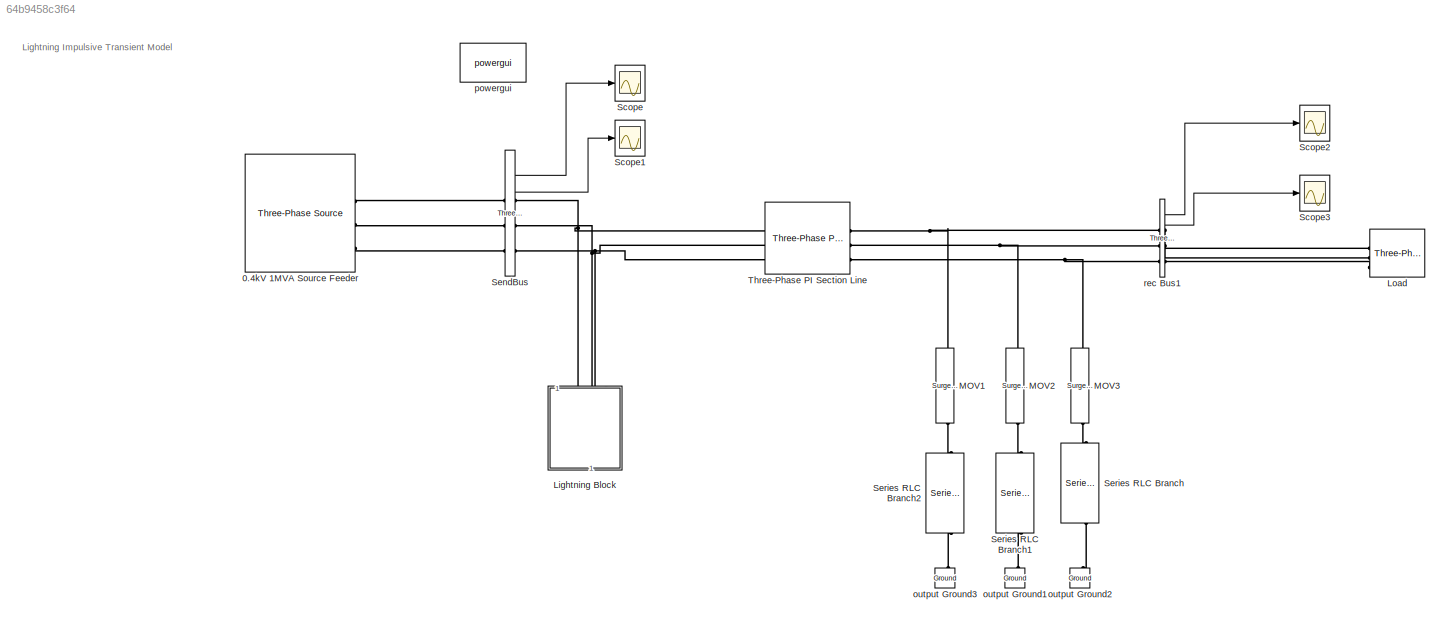
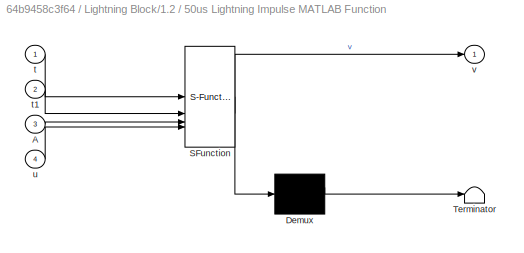
MODEL slx_64b9458c3f64
KIND model
CONFIG AbsTol = auto
CONFIG EnableMultiTasking = on
CONFIG FixedStep = auto
CONFIG MaxStep = auto
CONFIG MinStep = auto
CONFIG RelTol = 1e-3
CONFIG SampleTimeConstraint = Unconstrained
CONFIG SolverName = ode23tb
CONFIG StartTime = 0.0
CONFIG StopTime = .1
BLOCK [Reference] 0.4kV 1MVA Source Feeder  REF=spsThreePhaseSourceLib/Three-Phase Source
  LibrarySourceBlock = sps_lib/Sources/Three-Phase Source
  SourceBlock = spsThreePhaseSourceLib/Three-Phase Source
  SourceType = Three-Phase Source
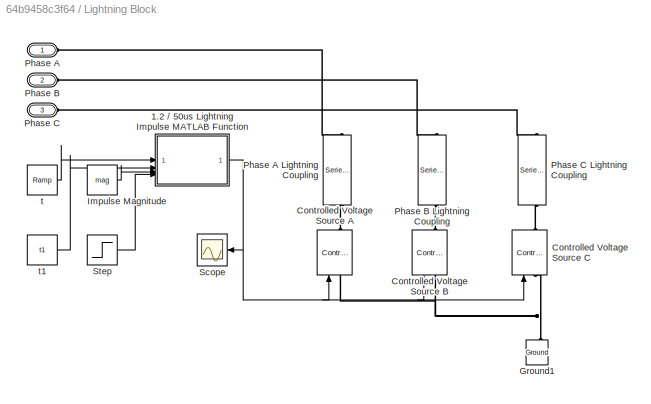
BLOCK [SubSystem] Lightning Block
  NameLocation = left
BLOCK [SubSystem] Lightning Block/1.2 // 50us Lightning Impulse MATLAB Function
  ErrorFcn = Stateflow.Translate.translate
  PermitHierarchicalResolution = ExplicitOnly
  SFBlockType = MATLAB Function
  TreatAsAtomicUnit = on
BLOCK [Demux] Lightning Block/1.2 // 50us Lightning Impulse MATLAB Function/ Demux 
  Outputs = 1
BLOCK [S-Function] Lightning Block/1.2 // 50us Lightning Impulse MATLAB Function/ SFunction 
  EnableBusSupport = off
  FunctionName = sf_sfun
  PortCounts = [4 2]
  SFcnIsStateOwnerBlock = off
  SFunctionDeploymentMode = off
  Tag = Stateflow S-Function 2
BLOCK [Terminator] Lightning Block/1.2 // 50us Lightning Impulse MATLAB Function/ Terminator 
BLOCK [Inport] Lightning Block/1.2 // 50us Lightning Impulse MATLAB Function/A
  Port = 3
BLOCK [Inport] Lightning Block/1.2 // 50us Lightning Impulse MATLAB Function/t
BLOCK [Inport] Lightning Block/1.2 // 50us Lightning Impulse MATLAB Function/t1
  Port = 2
BLOCK [Inport] Lightning Block/1.2 // 50us Lightning Impulse MATLAB Function/u
  Port = 4
BLOCK [Outport] Lightning Block/1.2 // 50us Lightning Impulse MATLAB Function/v
  VectorParamsAs1DForOutWhenUnconnected = off
BLOCK [Reference] Lightning Block/Controlled Voltage Source A  REF=spsControlledVoltageSourceLib/Controlled Voltage Source
  LibrarySourceBlock = sps_lib/Sources/Controlled Voltage Source
  NameLocation = left
  SourceBlock = spsControlledVoltageSourceLib/Controlled Voltage Source
  SourceType = Controlled Voltage Source
BLOCK [Reference] Lightning Block/Controlled Voltage Source B  REF=spsControlledVoltageSourceLib/Controlled Voltage Source
  LibrarySourceBlock = sps_lib/Sources/Controlled Voltage Source
  NameLocation = left
  SourceBlock = spsControlledVoltageSourceLib/Controlled Voltage Source
  SourceType = Controlled Voltage Source
BLOCK [Reference] Lightning Block/Controlled Voltage Source C  REF=spsControlledVoltageSourceLib/Controlled Voltage Source
  LibrarySourceBlock = sps_lib/Sources/Controlled Voltage Source
  NameLocation = left
  SourceBlock = spsControlledVoltageSourceLib/Controlled Voltage Source
  SourceType = Controlled Voltage Source
BLOCK [Reference] Lightning Block/Ground1  REF=spsGroundLib/Ground
  LibrarySourceBlock = sps_lib/Utilities/Ground
  NameLocation = right
  SourceBlock = spsGroundLib/Ground
  SourceType = Ground
BLOCK [Constant] Lightning Block/Impulse Magnitude
  Value = mag
BLOCK [PMIOPort] Lightning Block/Phase A
  Side = Left
BLOCK [Reference] Lightning Block/Phase A Lightning Coupling  REF=spsSeriesRLCBranchLib/Series RLC Branch
  LibrarySourceBlock = sps_lib/Passives/Series RLC Branch
  NameLocation = left
  SourceBlock = spsSeriesRLCBranchLib/Series RLC Branch
  SourceType = Series RLC Branch
BLOCK [PMIOPort] Lightning Block/Phase B
  Port = 2
  Side = Left
BLOCK [Reference] Lightning Block/Phase B Lightning Coupling  REF=spsSeriesRLCBranchLib/Series RLC Branch
  LibrarySourceBlock = sps_lib/Passives/Series RLC Branch
  NameLocation = left
  SourceBlock = spsSeriesRLCBranchLib/Series RLC Branch
  SourceType = Series RLC Branch
BLOCK [PMIOPort] Lightning Block/Phase C
  Port = 3
  Side = Left
BLOCK [Reference] Lightning Block/Phase C Lightning Coupling  REF=spsSeriesRLCBranchLib/Series RLC Branch
  LibrarySourceBlock = sps_lib/Passives/Series RLC Branch
  NameLocation = left
  SourceBlock = spsSeriesRLCBranchLib/Series RLC Branch
  SourceType = Series RLC Branch
BLOCK [Scope] Lightning Block/Scope
  DataLogging = on
  DataLoggingDecimateData = on
  DataLoggingDecimation = 1
  DataLoggingSaveFormat = Array
  DataLoggingVariableName = ScopeData1
  Floating = off
  GraphicalSettings = {"GraphicalSettings":{"LegacySettings":true,"Style":{"Style":{"MinimizeControls":"false","PlotType":"Auto"}}}}
  LayoutDimensionsString = [1 1]
  NumInputPorts = 1
  SampleTime = 1/1e6
  WasSavedAsWebScope = on
  WindowPosition = [724 354 324 239]
BLOCK [Step] Lightning Block/Step
  SampleTime = 0
  Time = t1
BLOCK [Reference] Lightning Block/t  REF=simulink/Sources/Ramp
  SourceBlock = simulink/Sources/Ramp
  SourceType = Ramp
BLOCK [Constant] Lightning Block/t1
  Value = t1
BLOCK [Reference] Load  REF=spsThreePhaseParallelRLCLoadLib/Three-Phase
Parallel RLC Load
  AttributesFormatString = \n
  LibrarySourceBlock = sps_lib/Passives/Three-Phase\nParallel RLC Load
  SourceBlock = spsThreePhaseParallelRLCLoadLib/Three-Phase\nParallel RLC Load
  SourceType = Three-Phase Parallel RLC Load
BLOCK [Reference] MOV1  REF=spsSurgeArresterLib/Surge Arrester
  AttributesFormatString = \n
  LibrarySourceBlock = sps_lib/Passives/Surge Arrester
  NameLocation = left
  SourceBlock = spsSurgeArresterLib/Surge Arrester
  SourceType = Surge Arrester
BLOCK [Reference] MOV2  REF=spsSurgeArresterLib/Surge Arrester
  AttributesFormatString = \n
  LibrarySourceBlock = sps_lib/Passives/Surge Arrester
  NameLocation = left
  SourceBlock = spsSurgeArresterLib/Surge Arrester
  SourceType = Surge Arrester
BLOCK [Reference] MOV3  REF=spsSurgeArresterLib/Surge Arrester
  AttributesFormatString = \n
  LibrarySourceBlock = sps_lib/Passives/Surge Arrester
  NameLocation = left
  SourceBlock = spsSurgeArresterLib/Surge Arrester
  SourceType = Surge Arrester
BLOCK [Scope] Scope
  ActiveDisplayYMaximum = 151040.12026
  ActiveDisplayYMinimum = -25226.28205
  DataLoggingDecimateData = on
  DataLoggingDecimation = 1
  DataLoggingSaveFormat = Structure With Time
  Floating = off
  GraphicalSettings = {"Style":{"BackgroundColor":[1,1,1],"AxesColor":[1,1,1],"LabelsColor":[0,0,0],"PreserveColors":false,"Visible":[true,true,true],"LineStyle":["-","-","-"],"LineWidth":[0.5,0.5,0.5],"BarWidth":[0.9,0.9,0.9],"LineColor":[[0,0,1],[1,0,0],[0,1,0]],"LineFaceAlpha":[1,1,1],"LineEdgeAlpha":[1,1,1],"Marker":["none","none","none"],"FontSize":8.5,"LineTrueColor":[[0,0,1],[1,0,0],[0,1,0]],"ChannelNames":[""],...<+2010ch>
  MultipleDisplayCache = [{"MaxYLimMag":151040.12026,"MaxYLimReal":151040.12026,"MinYLimMag":0,"MinYLimReal":-25226.28205,"PlotAsMagnitudePhase":false,"ShowGrid":false,"ShowLegend":false,"Title":"Sending End Bus Voltage Profile","YLabel":"Voltage (V)"}]
  NumInputPorts = 1
  ScopeFrameLocation = window
  ShowGrid = off
  ShowTimeAxisLabel = on
  TimeUnits = Seconds
  Title = Sending End Bus Voltage Profile
  WasSavedAsWebScope = on
  WindowPosition = [1.000000,1.000000,1536.000000,841.000000,]
  YLabel = Voltage (V)
BLOCK [Scope] Scope1
  ActiveDisplayYMaximum = 1655.21963
  ActiveDisplayYMinimum = -11708.72089
  DataLoggingDecimateData = on
  DataLoggingDecimation = 1
  DataLoggingSaveFormat = Structure With Time
  DataLoggingVariableName = ScopeData1
  Floating = off
  GraphicalSettings = {"Style":{"BackgroundColor":[1,1,1],"AxesColor":[1,1,1],"LabelsColor":[0,0,0],"PreserveColors":false,"Visible":[true,true,true],"LineStyle":["-","-","-"],"LineWidth":[0.5,0.5,0.5],"BarWidth":[0.9,0.9,0.9],"LineColor":[[0,0,1],[1,0,0],[0,1,0]],"LineFaceAlpha":[1,1,1],"LineEdgeAlpha":[1,1,1],"Marker":["none","none","none"],"FontSize":8.5,"LineTrueColor":[[0,0,1],[1,0,0],[0,1,0]],"ChannelNames":[""],...<+2004ch>
  MultipleDisplayCache = [{"MaxYLimMag":11708.72089,"MaxYLimReal":1655.21963,"MinYLimMag":0,"MinYLimReal":-11708.72089,"PlotAsMagnitudePhase":false,"ShowGrid":false,"ShowLegend":false,"Title":"Sending End Bus Current Profile","YLabel":"Current (A)"}]
  NumInputPorts = 1
  ScopeFrameLocation = window
  ShowGrid = off
  ShowTimeAxisLabel = on
  TimeUnits = Seconds
  Title = Sending End Bus Current Profile
  WasSavedAsWebScope = on
  WindowPosition = [1.000000,137.000000,1354.000000,651.000000,]
  YLabel = Current (A)
BLOCK [Scope] Scope2
  ActiveDisplayYMaximum = 189.61393404521641
  ActiveDisplayYMinimum = -182.01456538120124
  DataLoggingDecimateData = on
  DataLoggingDecimation = 1
  DataLoggingSaveFormat = Structure With Time
  DataLoggingVariableName = ScopeData2
  Floating = off
  GraphicalSettings = {"Style":{"BackgroundColor":[1,1,1],"AxesColor":[1,1,1],"LabelsColor":[0,0,0],"PreserveColors":false,"Visible":[true,true,true],"LineStyle":["-","-","-"],"LineWidth":[0.5,0.5,0.5],"BarWidth":[0.9,0.9,0.9],"LineColor":[[0,0,1],[1,0,0],[0,1,0]],"LineFaceAlpha":[1,1,1],"LineEdgeAlpha":[1,1,1],"Marker":["none","none","none"],"FontSize":8.5,"LineTrueColor":[[0,0,1],[1,0,0],[0,1,0]],"ChannelNames":[""],...<+2054ch>
  MultipleDisplayCache = [{"MaxYLimMag":189.61393404521641,"MaxYLimReal":189.61393404521641,"MinYLimMag":0,"MinYLimReal":-182.01456538120124,"PlotAsMagnitudePhase":false,"ShowGrid":false,"ShowLegend":false,"Title":"Recieving End Bus Voltage Profile","YLabel":"Voltage (V)"}]
  NumInputPorts = 1
  ScopeFrameLocation = window
  ShowGrid = off
  ShowTimeAxisLabel = on
  TimeUnits = Seconds
  Title = Recieving End Bus Voltage Profile
  WasSavedAsWebScope = on
  WindowPosition = [1.000000,1.000000,1536.000000,841.000000,]
  YLabel = Voltage (V)
BLOCK [Scope] Scope3
  ActiveDisplayYMaximum = 11.839411409521356
  ActiveDisplayYMinimum = -11.355164746020828
  DataLoggingDecimateData = on
  DataLoggingDecimation = 1
  DataLoggingSaveFormat = Structure With Time
  DataLoggingVariableName = ScopeData3
  Floating = off
  GraphicalSettings = {"Style":{"BackgroundColor":[1,1,1],"AxesColor":[1,1,1],"LabelsColor":[0,0,0],"PreserveColors":false,"Visible":[true,true,true],"LineStyle":["-","-","-"],"LineWidth":[0.5,0.5,0.5],"BarWidth":[0.9,0.9,0.9],"LineColor":[[0,0,1],[1,0,0],[0,1,0]],"LineFaceAlpha":[1,1,1],"LineEdgeAlpha":[1,1,1],"Marker":["none","none","none"],"FontSize":8.5,"LineTrueColor":[[0,0,1],[1,0,0],[0,1,0]],"ChannelNames":[""],...<+2060ch>
  MultipleDisplayCache = [{"MaxYLimMag":11.839411409521356,"MaxYLimReal":11.839411409521356,"MinYLimMag":0,"MinYLimReal":-11.355164746020828,"PlotAsMagnitudePhase":false,"ShowGrid":false,"ShowLegend":false,"Title":"Recieving End Bus Current Profile ","YLabel":"Current (A)"}]
  NumInputPorts = 1
  ScopeFrameLocation = window
  ShowGrid = off
  ShowTimeAxisLabel = on
  TimeUnits = Seconds
  Title = Recieving End Bus Current Profile
  WasSavedAsWebScope = on
  WindowPosition = [1.000000,1.000000,1536.000000,841.000000,]
  YLabel = Current (A)
BLOCK [Reference] SendBus  REF=spsThreePhaseVIMeasurementLib/Three-Phase
V-I Measurement
  LibrarySourceBlock = sps_lib/Sensors and Measurements/Three-Phase\nV-I Measurement
  SourceBlock = spsThreePhaseVIMeasurementLib/Three-Phase\nV-I Measurement
  SourceType = Three-Phase VI Measurement
BLOCK [Reference] Series RLC Branch  REF=spsSeriesRLCBranchLib/Series RLC Branch
  LibrarySourceBlock = sps_lib/Passives/Series RLC Branch
  NameLocation = left
  SourceBlock = spsSeriesRLCBranchLib/Series RLC Branch
  SourceType = Series RLC Branch
BLOCK [Reference] Series RLC Branch1  REF=spsSeriesRLCBranchLib/Series RLC Branch
  LibrarySourceBlock = sps_lib/Passives/Series RLC Branch
  NameLocation = left
  SourceBlock = spsSeriesRLCBranchLib/Series RLC Branch
  SourceType = Series RLC Branch
BLOCK [Reference] Series RLC Branch2  REF=spsSeriesRLCBranchLib/Series RLC Branch
  LibrarySourceBlock = sps_lib/Passives/Series RLC Branch
  NameLocation = left
  SourceBlock = spsSeriesRLCBranchLib/Series RLC Branch
  SourceType = Series RLC Branch
BLOCK [Reference] Three-Phase PI Section Line  REF=spsThreePhasePISectionLineLib/Three-Phase
PI Section Line
  AttributesFormatString = \n
  LibrarySourceBlock = sps_lib/Power Grid Elements/Three-Phase\nPI Section Line
  SourceBlock = spsThreePhasePISectionLineLib/Three-Phase\nPI Section Line
  SourceType = Three-Phase PI Section Line
BLOCK [Reference] output Ground1  REF=spsGroundLib/Ground
  AttributesFormatString = \n
  LibrarySourceBlock = sps_lib/Utilities/Ground
  NameLocation = right
  SourceBlock = spsGroundLib/Ground
  SourceType = Ground
BLOCK [Reference] output Ground2  REF=spsGroundLib/Ground
  AttributesFormatString = \n
  LibrarySourceBlock = sps_lib/Utilities/Ground
  NameLocation = right
  SourceBlock = spsGroundLib/Ground
  SourceType = Ground
BLOCK [Reference] output Ground3  REF=spsGroundLib/Ground
  AttributesFormatString = \n
  LibrarySourceBlock = sps_lib/Utilities/Ground
  NameLocation = right
  SourceBlock = spsGroundLib/Ground
  SourceType = Ground
BLOCK [Reference] powergui  REF=sps_lib/powergui
  LibrarySourceBlock = sps_lib/powergui
  Priority = 1
  SourceBlock = sps_lib/powergui
  SourceType = PSB option menu block
BLOCK [Reference] rec Bus1  REF=spsThreePhaseVIMeasurementLib/Three-Phase
V-I Measurement
  LibrarySourceBlock = sps_lib/Sensors and Measurements/Three-Phase\nV-I Measurement
  SourceBlock = spsThreePhaseVIMeasurementLib/Three-Phase\nV-I Measurement
  SourceType = Three-Phase VI Measurement
ANNOTATION (root): Lightning Impulsive Transient Model
NET Lightning Block/1.2 // 50us Lightning Impulse MATLAB Function:1 -> Lightning Block/Controlled Voltage Source A:1, Lightning Block/Controlled Voltage Source B:1, Lightning Block/Controlled Voltage Source C:1, Lightning Block/Scope:1
LINE Lightning Block/Impulse Magnitude:1 -> Lightning Block/1.2 // 50us Lightning Impulse MATLAB Function:3
LINE Lightning Block/Step:1 -> Lightning Block/1.2 // 50us Lightning Impulse MATLAB Function:4
LINE Lightning Block/t1:1 -> Lightning Block/1.2 // 50us Lightning Impulse MATLAB Function:2
LINE Lightning Block/t:1 -> Lightning Block/1.2 // 50us Lightning Impulse MATLAB Function:1
LINE SendBus:1 -> Scope:1
LINE SendBus:2 -> Scope1:1
LINE rec Bus1:1 -> Scope2:1
LINE rec Bus1:2 -> Scope3:1
PLINE 0.4kV 1MVA Source Feeder:RConn1 -- SendBus:LConn1
PLINE 0.4kV 1MVA Source Feeder:RConn2 -- SendBus:LConn2
PLINE 0.4kV 1MVA Source Feeder:RConn3 -- SendBus:LConn3
PNET net1: Lightning Block/Controlled Voltage Source A:LConn1 -- Lightning Block/Controlled Voltage Source B:LConn1 -- Lightning Block/Controlled Voltage Source C:LConn1 -- Lightning Block/Ground1:LConn1
PLINE Lightning Block/Controlled Voltage Source A:RConn1 -- Lightning Block/Phase A Lightning Coupling:RConn1
PLINE Lightning Block/Controlled Voltage Source B:RConn1 -- Lightning Block/Phase B Lightning Coupling:RConn1
PLINE Lightning Block/Controlled Voltage Source C:RConn1 -- Lightning Block/Phase C Lightning Coupling:RConn1
PLINE Lightning Block/Phase A Lightning Coupling:LConn1 -- Lightning Block/Phase A:RConn1
PLINE Lightning Block/Phase B Lightning Coupling:LConn1 -- Lightning Block/Phase B:RConn1
PLINE Lightning Block/Phase C Lightning Coupling:LConn1 -- Lightning Block/Phase C:RConn1
PNET net2: Lightning Block:LConn1 -- SendBus:RConn1 -- Three-Phase PI Section Line:LConn1
PNET net3: Lightning Block:LConn2 -- SendBus:RConn2 -- Three-Phase PI Section Line:LConn2
PNET net4: Lightning Block:LConn3 -- SendBus:RConn3 -- Three-Phase PI Section Line:LConn3
PLINE Load:LConn1 -- rec Bus1:RConn1
PLINE Load:LConn2 -- rec Bus1:RConn2
PLINE Load:LConn3 -- rec Bus1:RConn3
PNET net5: MOV1:LConn1 -- Three-Phase PI Section Line:RConn1 -- rec Bus1:LConn1
PLINE MOV1:RConn1 -- Series RLC Branch2:LConn1
PNET net6: MOV2:LConn1 -- Three-Phase PI Section Line:RConn2 -- rec Bus1:LConn2
PLINE MOV2:RConn1 -- Series RLC Branch1:LConn1
PNET net7: MOV3:LConn1 -- Three-Phase PI Section Line:RConn3 -- rec Bus1:LConn3
PLINE MOV3:RConn1 -- Series RLC Branch:LConn1
PLINE Series RLC Branch1:RConn1 -- output Ground1:LConn1
PLINE Series RLC Branch2:RConn1 -- output Ground3:LConn1
PLINE Series RLC Branch:RConn1 -- output Ground2:LConn1
note: NET lines group one-source signal fan-out (src -> all destinations, sorted); 1:1 wires keep LINE; PNET lines group multi-terminal physical nets as a canonical sorted terminal list (undirected conserving connections); 2-terminal nets keep the pairwise PLINE form
CHART Lightning
Block/1.2 // 50us 
Lightning Impulse
MATLAB Function states=1 transitions=1
  STATE_LABEL 'eML_blk_kernel()'
  STATE_LABEL 'SCRIPT:\nfunction v = fcn(t,t1,A,u)\nalpha=14000;\nv = A*exp(-alpha*abs(t-t1))*u;'
CHART  states=0 transitions=0
